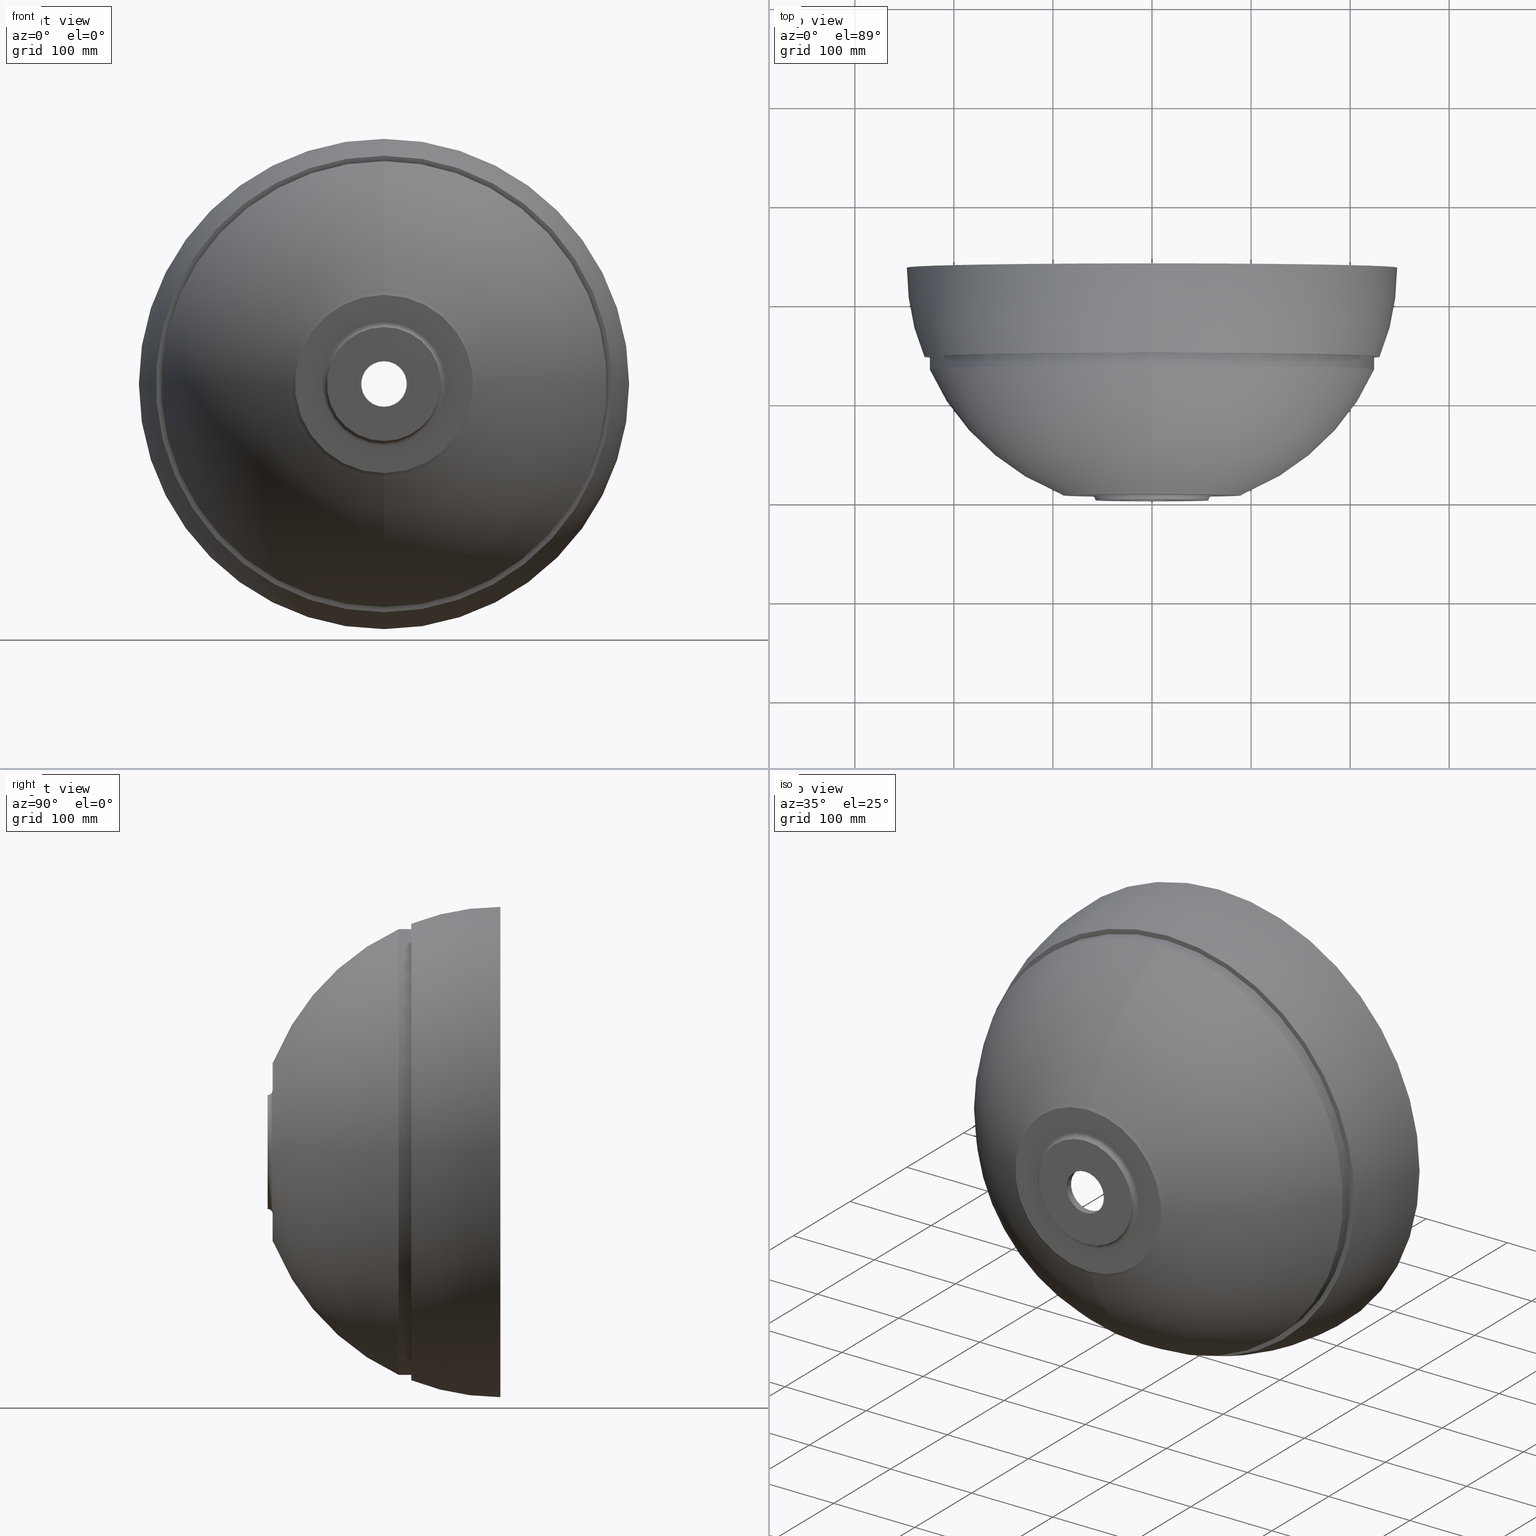
[diagram: canonical four-view strip — front | top / right | iso, engineering-drawing reading convention]
A machine part, canonical four-view strip (front | top / right | iso — engineering-drawing reading convention). The complete STEP part file that produces these views, byte-faithful:
ISO-10303-21;
HEADER;
FILE_DESCRIPTION (( 'STEP AP214' ),
    '1' );
FILE_NAME ('Z821-2HSO Aglaia gro�.STEP',
    '2018-04-12T14:11:02',
    ( '' ),
    ( '' ),
    'SwSTEP 2.0',
    'SolidWorks 2017',
    '' );
FILE_SCHEMA (( 'AUTOMOTIVE_DESIGN' ));
ENDSEC;

DATA;
#1 = CIRCLE ( 'NONE', #137, 225.0000000000000000 ) ;
#2 = EDGE_LOOP ( 'NONE', ( #27, #566, #191, #262 ) ) ;
#3 = PRODUCT_DEFINITION_SHAPE ( 'NONE', 'NONE',  #361 ) ;
#4 = ORIENTED_EDGE ( 'NONE', *, *, #188, .F. ) ;
#5 = ADVANCED_FACE ( 'NONE', ( #583 ), #533, .T. ) ;
#6 = ORIENTED_EDGE ( 'NONE', *, *, #407, .T. ) ;
#7 = EDGE_LOOP ( 'NONE', ( #494, #161, #201, #490 ) ) ;
#8 = DIRECTION ( 'NONE',  ( -0.0000000000000000000, -1.000000000000000000, -0.0000000000000000000 ) ) ;
#9 = AXIS2_PLACEMENT_3D ( 'NONE', #279, #283, #293 ) ;
#10 = LINE ( 'NONE', #565, #171 ) ;
#11 = AXIS2_PLACEMENT_3D ( 'NONE', #587, #603, #585 ) ;
#12 = UNCERTAINTY_MEASURE_WITH_UNIT (LENGTH_MEASURE( 1.000000000000000100E-005 ), #406, 'distance_accuracy_value', 'NONE');
#13 = ORIENTED_EDGE ( 'NONE', *, *, #498, .T. ) ;
#14 = CIRCLE ( 'NONE', #197, 247.5000000000000000 ) ;
#15 = PRESENTATION_STYLE_ASSIGNMENT (( #45 ) ) ;
#16 = FACE_OUTER_BOUND ( 'NONE', #7, .T. ) ;
#17 = FACE_OUTER_BOUND ( 'NONE', #174, .T. ) ;
#18 =( GEOMETRIC_REPRESENTATION_CONTEXT ( 3 ) GLOBAL_UNCERTAINTY_ASSIGNED_CONTEXT ( ( #272 ) ) GLOBAL_UNIT_ASSIGNED_CONTEXT ( ( #524, #561, #50 ) ) REPRESENTATION_CONTEXT ( 'NONE', 'WORKASPACE' ) );
#19 = EDGE_CURVE ( 'NONE', #55, #76, #97, .T. ) ;
#20 = MECHANICAL_DESIGN_GEOMETRIC_PRESENTATION_REPRESENTATION (  '', ( #64 ), #374 ) ;
#21 = PRODUCT ( 'Z821-2HSO Aglaia gro�', 'Z821-2HSO Aglaia gro�', '', ( #554 ) ) ;
#22 = TOROIDAL_SURFACE ( 'NONE', #392, 16.47435897435897100, 216.0256410256409900 ) ;
#23 = ADVANCED_FACE ( 'NONE', ( #17 ), #295, .F. ) ;
#24 = DIRECTION ( 'NONE',  ( 0.0000000000000000000, 1.000000000000000000, 0.0000000000000000000 ) ) ;
#25 = ORIENTED_EDGE ( 'NONE', *, *, #598, .F. ) ;
#26 = CIRCLE ( 'NONE', #364, 245.5287816431456600 ) ;
#27 = ORIENTED_EDGE ( 'NONE', *, *, #379, .T. ) ;
#28 = DIRECTION ( 'NONE',  ( 0.0000000000000000000, 0.0000000000000000000, -1.000000000000000000 ) ) ;
#29 = CIRCLE ( 'NONE', #9, 23.00000000000000000 ) ;
#30 = CARTESIAN_POINT ( 'NONE',  ( 0.0000000000000000000, 145.0000000000000000, 0.0000000000000000000 ) ) ;
#31 = ADVANCED_FACE ( 'NONE', ( #96 ), #135, .T. ) ;
#32 = VERTEX_POINT ( 'NONE', #479 ) ;
#33 = FACE_OUTER_BOUND ( 'NONE', #544, .T. ) ;
#34 = VECTOR ( 'NONE', #111, 1000.000000000000000 ) ;
#35 = EDGE_CURVE ( 'NONE', #69, #210, #51, .T. ) ;
#36 = EDGE_CURVE ( 'NONE', #578, #263, #190, .T. ) ;
#37 = FILL_AREA_STYLE ('',( #109 ) ) ;
#38 = APPLICATION_PROTOCOL_DEFINITION ( 'draft international standard', 'automotive_design', 1998, #256 ) ;
#39 = EDGE_LOOP ( 'NONE', ( #335, #185, #399, #343 ) ) ;
#40 = CIRCLE ( 'NONE', #43, 57.50000000000000000 ) ;
#41 = VERTEX_POINT ( 'NONE', #474 ) ;
#42 = ORIENTED_EDGE ( 'NONE', *, *, #77, .F. ) ;
#43 = AXIS2_PLACEMENT_3D ( 'NONE', #422, #428, #427 ) ;
#44 = CIRCLE ( 'NONE', #112, 245.5287816431456600 ) ;
#45 = SURFACE_STYLE_USAGE ( .BOTH. , #265 ) ;
#46 = VECTOR ( 'NONE', #330, 1000.000000000000000 ) ;
#47 = EDGE_LOOP ( 'NONE', ( #294, #358, #176, #510 ) ) ;
#48 = LINE ( 'NONE', #507, #378 ) ;
#49 = EDGE_CURVE ( 'NONE', #115, #508, #44, .T. ) ;
#50 =( NAMED_UNIT ( * ) SI_UNIT ( $, .STERADIAN. ) SOLID_ANGLE_UNIT ( ) );
#51 = CIRCLE ( 'NONE', #548, 216.0256410256409900 ) ;
#52 = AXIS2_PLACEMENT_3D ( 'NONE', #576, #236, #250 ) ;
#53 = ORIENTED_EDGE ( 'NONE', *, *, #79, .T. ) ;
#54 = FACE_OUTER_BOUND ( 'NONE', #560, .T. ) ;
#55 = VERTEX_POINT ( 'NONE', #528 ) ;
#56 = AXIS2_PLACEMENT_3D ( 'NONE', #550, #547, #503 ) ;
#57 = CIRCLE ( 'NONE', #340, 225.0000000000000000 ) ;
#58 = DIRECTION ( 'NONE',  ( 0.0000000000000000000, 0.0000000000000000000, 1.000000000000000000 ) ) ;
#59 = FACE_OUTER_BOUND ( 'NONE', #2, .T. ) ;
#60 = ORIENTED_EDGE ( 'NONE', *, *, #308, .F. ) ;
#61 = AXIS2_PLACEMENT_3D ( 'NONE', #336, #286, #337 ) ;
#62 = ORIENTED_EDGE ( 'NONE', *, *, #122, .T. ) ;
#63 = FACE_OUTER_BOUND ( 'NONE', #450, .T. ) ;
#64 = STYLED_ITEM ( 'NONE', ( #228 ), #165 ) ;
#65 = DIRECTION ( 'NONE',  ( 0.0000000000000000000, 0.0000000000000000000, 1.000000000000000000 ) ) ;
#66 = DIRECTION ( 'NONE',  ( 1.000000000000000000, 0.0000000000000000000, -1.224646799147353200E-016 ) ) ;
#67 = EDGE_CURVE ( 'NONE', #263, #578, #146, .T. ) ;
#68 = AXIS2_PLACEMENT_3D ( 'NONE', #116, #104, #366 ) ;
#69 = VERTEX_POINT ( 'NONE', #546 ) ;
#70 = DIRECTION ( 'NONE',  ( -1.000000000000000000, 0.0000000000000000000, 0.0000000000000000000 ) ) ;
#71 = EDGE_LOOP ( 'NONE', ( #326, #300, #280, #315 ) ) ;
#72 = CARTESIAN_POINT ( 'NONE',  ( 0.0000000000000000000, 20.00000000000000000, -37.50000000000000000 ) ) ;
#73 = ORIENTED_EDGE ( 'NONE', *, *, #352, .F. ) ;
#74 = VERTEX_POINT ( 'NONE', #487 ) ;
#75 = FACE_OUTER_BOUND ( 'NONE', #473, .T. ) ;
#76 = VERTEX_POINT ( 'NONE', #443 ) ;
#77 = EDGE_CURVE ( 'NONE', #304, #168, #586, .T. ) ;
#78 = AXIS2_PLACEMENT_3D ( 'NONE', #529, #559, #568 ) ;
#79 = EDGE_CURVE ( 'NONE', #338, #184, #579, .T. ) ;
#80 = AXIS2_PLACEMENT_3D ( 'NONE', #217, #322, #306 ) ;
#81 = CARTESIAN_POINT ( 'NONE',  ( 0.0000000000000000000, 145.0000000000000000, 0.0000000000000000000 ) ) ;
#82 = VERTEX_POINT ( 'NONE', #569 ) ;
#83 = ORIENTED_EDGE ( 'NONE', *, *, #77, .T. ) ;
#84 = EDGE_LOOP ( 'NONE', ( #537, #178, #91, #227 ) ) ;
#85 = EDGE_CURVE ( 'NONE', #74, #508, #517, .T. ) ;
#86 = EDGE_LOOP ( 'NONE', ( #88, #117 ) ) ;
#87 = CIRCLE ( 'NONE', #141, 216.0256410256409900 ) ;
#88 = ORIENTED_EDGE ( 'NONE', *, *, #36, .F. ) ;
#89 = AXIS2_PLACEMENT_3D ( 'NONE', #572, #452, #454 ) ;
#90 = AXIS2_PLACEMENT_3D ( 'NONE', #480, #558, #247 ) ;
#91 = ORIENTED_EDGE ( 'NONE', *, *, #150, .T. ) ;
#92 = ORIENTED_EDGE ( 'NONE', *, *, #486, .T. ) ;
#93 = TOROIDAL_SURFACE ( 'NONE', #213, 1.971218356854346700, 245.5287816431456600 ) ;
#94 = ORIENTED_EDGE ( 'NONE', *, *, #35, .F. ) ;
#95 = CLOSED_SHELL ( 'NONE', ( #129, #333, #289, #302, #591, #278, #202, #242, #329, #204, #203, #167, #344, #567, #23, #234, #375, #31, #199, #99, #5 ) ) ;
#96 = FACE_OUTER_BOUND ( 'NONE', #525, .T. ) ;
#97 = CIRCLE ( 'NONE', #258, 95.54141989114369000 ) ;
#98 = EDGE_CURVE ( 'NONE', #32, #488, #10, .T. ) ;
#99 = ADVANCED_FACE ( 'NONE', ( #292, #54 ), #398, .F. ) ;
#100 = APPLICATION_CONTEXT ( 'automotive_design' ) ;
#101 =( NAMED_UNIT ( * ) PLANE_ANGLE_UNIT ( ) SI_UNIT ( $, .RADIAN. ) );
#102 = ORIENTED_EDGE ( 'NONE', *, *, #461, .F. ) ;
#103 = ORIENTED_EDGE ( 'NONE', *, *, #308, .T. ) ;
#104 = DIRECTION ( 'NONE',  ( -0.0000000000000000000, -1.000000000000000000, -0.0000000000000000000 ) ) ;
#105 = CIRCLE ( 'NONE', #430, 231.3768428607466500 ) ;
#106 = CIRCLE ( 'NONE', #158, 37.50000000000000000 ) ;
#107 = AXIS2_PLACEMENT_3D ( 'NONE', #571, #534, #483 ) ;
#108 = EDGE_CURVE ( 'NONE', #196, #76, #142, .T. ) ;
#109 = FILL_AREA_STYLE_COLOUR ( '', #395 ) ;
#110 = STYLED_ITEM ( 'NONE', ( #15 ), #209 ) ;
#111 = DIRECTION ( 'NONE',  ( -0.0000000000000000000, -1.000000000000000000, -0.0000000000000000000 ) ) ;
#112 = AXIS2_PLACEMENT_3D ( 'NONE', #535, #541, #545 ) ;
#113 = CARTESIAN_POINT ( 'NONE',  ( 0.0000000000000000000, 0.0000000000000000000, 0.0000000000000000000 ) ) ;
#114 = AXIS2_PLACEMENT_3D ( 'NONE', #460, #233, #248 ) ;
#115 = VERTEX_POINT ( 'NONE', #380 ) ;
#116 = CARTESIAN_POINT ( 'NONE',  ( 0.0000000000000000000, 20.00000000000000000, 0.0000000000000000000 ) ) ;
#117 = ORIENTED_EDGE ( 'NONE', *, *, #67, .F. ) ;
#118 = DIRECTION ( 'NONE',  ( 0.0000000000000000000, 0.0000000000000000000, -1.000000000000000000 ) ) ;
#119 = DIRECTION ( 'NONE',  ( -0.0000000000000000000, -1.000000000000000000, -0.0000000000000000000 ) ) ;
#120 = DIRECTION ( 'NONE',  ( 0.0000000000000000000, 0.0000000000000000000, -1.000000000000000000 ) ) ;
#121 = DIRECTION ( 'NONE',  ( -0.0000000000000000000, -1.000000000000000000, -0.0000000000000000000 ) ) ;
#122 = EDGE_CURVE ( 'NONE', #115, #133, #14, .T. ) ;
#123 = AXIS2_PLACEMENT_3D ( 'NONE', #453, #451, #449 ) ;
#124 = CARTESIAN_POINT ( 'NONE',  ( 0.0000000000000000000, 8.000000000000062200, 0.0000000000000000000 ) ) ;
#125 = CIRCLE ( 'NONE', #221, 231.3768428607466500 ) ;
#126 = FACE_OUTER_BOUND ( 'NONE', #39, .T. ) ;
#127 = ORIENTED_EDGE ( 'NONE', *, *, #181, .T. ) ;
#128 = MECHANICAL_DESIGN_GEOMETRIC_PRESENTATION_REPRESENTATION (  '', ( #110 ), #18 ) ;
#129 = ADVANCED_FACE ( 'NONE', ( #63 ), #93, .T. ) ;
#130 = TOROIDAL_SURFACE ( 'NONE', #61, 258.1938586785503800, 26.95717112091865200 ) ;
#131 = FACE_OUTER_BOUND ( 'NONE', #514, .T. ) ;
#132 = ORIENTED_EDGE ( 'NONE', *, *, #287, .F. ) ;
#133 = VERTEX_POINT ( 'NONE', #316 ) ;
#134 = CARTESIAN_POINT ( 'NONE',  ( 0.0000000000000000000, 235.0000000000000000, -16.47435897435897100 ) ) ;
#135 = TOROIDAL_SURFACE ( 'NONE', #89, 1.971218356854346700, 245.5287816431456600 ) ;
#136 = TOROIDAL_SURFACE ( 'NONE', #154, 258.1938586785503800, 26.95717112091865200 ) ;
#137 = AXIS2_PLACEMENT_3D ( 'NONE', #81, #119, #118 ) ;
#138 = ORIENTED_EDGE ( 'NONE', *, *, #170, .F. ) ;
#139 = AXIS2_PLACEMENT_3D ( 'NONE', #539, #538, #540 ) ;
#140 = ORIENTED_EDGE ( 'NONE', *, *, #170, .T. ) ;
#141 = AXIS2_PLACEMENT_3D ( 'NONE', #134, #70, #65 ) ;
#142 = CIRCLE ( 'NONE', #160, 30.00000000000000000 ) ;
#143 = UNCERTAINTY_MEASURE_WITH_UNIT (LENGTH_MEASURE( 1.000000000000000100E-005 ), #387, 'distance_accuracy_value', 'NONE');
#144 = EDGE_LOOP ( 'NONE', ( #542, #6, #193, #516 ) ) ;
#145 = VERTEX_POINT ( 'NONE', #312 ) ;
#146 = CIRCLE ( 'NONE', #78, 62.50000000000000000 ) ;
#147 = AXIS2_PLACEMENT_3D ( 'NONE', #321, #409, #357 ) ;
#148 = FACE_OUTER_BOUND ( 'NONE', #71, .T. ) ;
#149 = CIRCLE ( 'NONE', #249, 247.5000000000000000 ) ;
#150 = EDGE_CURVE ( 'NONE', #145, #55, #388, .T. ) ;
#151 = ORIENTED_EDGE ( 'NONE', *, *, #311, .T. ) ;
#152 = CIRCLE ( 'NONE', #68, 37.50000000000000000 ) ;
#153 = EDGE_CURVE ( 'NONE', #32, #266, #240, .T. ) ;
#154 = AXIS2_PLACEMENT_3D ( 'NONE', #222, #597, #28 ) ;
#155 = DIRECTION ( 'NONE',  ( 0.0000000000000000000, 0.0000000000000000000, -1.000000000000000000 ) ) ;
#156 = TOROIDAL_SURFACE ( 'NONE', #411, 16.47435897435897100, 216.0256410256409900 ) ;
#157 = ORIENTED_EDGE ( 'NONE', *, *, #150, .F. ) ;
#158 = AXIS2_PLACEMENT_3D ( 'NONE', #386, #334, #365 ) ;
#159 = EDGE_LOOP ( 'NONE', ( #218, #383 ) ) ;
#160 = AXIS2_PLACEMENT_3D ( 'NONE', #254, #402, #253 ) ;
#161 = ORIENTED_EDGE ( 'NONE', *, *, #287, .T. ) ;
#162 = FACE_BOUND ( 'NONE', #86, .T. ) ;
#163 = VECTOR ( 'NONE', #446, 1000.000000000000000 ) ;
#164 = LINE ( 'NONE', #553, #34 ) ;
#165 = MANIFOLD_SOLID_BREP ( 'Rotation1', #95 ) ;
#166 = CYLINDRICAL_SURFACE ( 'NONE', #520, 224.9999999999999700 ) ;
#167 = ADVANCED_FACE ( 'NONE', ( #33 ), #555, .F. ) ;
#168 = VERTEX_POINT ( 'NONE', #416 ) ;
#169 = CONICAL_SURFACE ( 'NONE', #445, 23.00000000000000000, 0.8726646259971664300 ) ;
#170 = EDGE_CURVE ( 'NONE', #184, #338, #40, .T. ) ;
#171 = VECTOR ( 'NONE', #557, 1000.000000000000000 ) ;
#172 = LINE ( 'NONE', #332, #46 ) ;
#173 = ORIENTED_EDGE ( 'NONE', *, *, #563, .T. ) ;
#174 = EDGE_LOOP ( 'NONE', ( #132, #138, #173, #601 ) ) ;
#175 = ORIENTED_EDGE ( 'NONE', *, *, #359, .T. ) ;
#176 = ORIENTED_EDGE ( 'NONE', *, *, #215, .T. ) ;
#177 = EDGE_LOOP ( 'NONE', ( #13, #325 ) ) ;
#178 = ORIENTED_EDGE ( 'NONE', *, *, #498, .F. ) ;
#179 = CARTESIAN_POINT ( 'NONE',  ( 2.414046251142180800E-016, 235.0000000000000000, 1.971218356854346700 ) ) ;
#180 = ORIENTED_EDGE ( 'NONE', *, *, #153, .F. ) ;
#181 = EDGE_CURVE ( 'NONE', #266, #32, #584, .T. ) ;
#182 = TOROIDAL_SURFACE ( 'NONE', #114, 1.971218356854346700, 245.5287816431456600 ) ;
#183 = FACE_OUTER_BOUND ( 'NONE', #47, .T. ) ;
#184 = VERTEX_POINT ( 'NONE', #417 ) ;
#185 = ORIENTED_EDGE ( 'NONE', *, *, #423, .T. ) ;
#186 = CIRCLE ( 'NONE', #52, 245.5287816431456600 ) ;
#187 = AXIS2_PLACEMENT_3D ( 'NONE', #413, #389, #319 ) ;
#188 = EDGE_CURVE ( 'NONE', #508, #74, #368, .T. ) ;
#189 = SURFACE_STYLE_FILL_AREA ( #37 ) ;
#190 = CIRCLE ( 'NONE', #309, 62.50000000000000000 ) ;
#191 = ORIENTED_EDGE ( 'NONE', *, *, #19, .F. ) ;
#192 = DIRECTION ( 'NONE',  ( -1.224646799147353200E-016, 0.0000000000000000000, -1.000000000000000000 ) ) ;
#193 = ORIENTED_EDGE ( 'NONE', *, *, #470, .T. ) ;
#194 = EDGE_CURVE ( 'NONE', #291, #168, #431, .T. ) ;
#195 = ORIENTED_EDGE ( 'NONE', *, *, #194, .T. ) ;
#196 = VERTEX_POINT ( 'NONE', #492 ) ;
#197 = AXIS2_PLACEMENT_3D ( 'NONE', #277, #244, #307 ) ;
#198 = AXIS2_PLACEMENT_3D ( 'NONE', #438, #346, #342 ) ;
#199 = ADVANCED_FACE ( 'NONE', ( #594 ), #166, .T. ) ;
#200 = ORIENTED_EDGE ( 'NONE', *, *, #527, .F. ) ;
#201 = ORIENTED_EDGE ( 'NONE', *, *, #67, .T. ) ;
#202 = ADVANCED_FACE ( 'NONE', ( #419 ), #169, .F. ) ;
#203 = ADVANCED_FACE ( 'NONE', ( #482 ), #156, .F. ) ;
#204 = ADVANCED_FACE ( 'NONE', ( #223 ), #130, .T. ) ;
#205 = ORIENTED_EDGE ( 'NONE', *, *, #370, .F. ) ;
#206 = EDGE_CURVE ( 'NONE', #32, #82, #172, .T. ) ;
#207 = AXIS2_PLACEMENT_3D ( 'NONE', #124, #121, #120 ) ;
#208 = CIRCLE ( 'NONE', #481, 26.95717112091866600 ) ;
#209 = ADVANCED_BREP_SHAPE_REPRESENTATION ( 'Z821-2HSO Aglaia gro�', ( #165, #349 ), #347 ) ;
#210 = VERTEX_POINT ( 'NONE', #331 ) ;
#211 = DIRECTION ( 'NONE',  ( -0.0000000000000000000, -1.000000000000000000, -0.0000000000000000000 ) ) ;
#212 = DIRECTION ( 'NONE',  ( 1.000000000000000000, 0.0000000000000000000, 0.0000000000000000000 ) ) ;
#213 = AXIS2_PLACEMENT_3D ( 'NONE', #605, #257, #310 ) ;
#214 = ORIENTED_EDGE ( 'NONE', *, *, #433, .T. ) ;
#215 = EDGE_CURVE ( 'NONE', #327, #82, #29, .T. ) ;
#216 = ORIENTED_EDGE ( 'NONE', *, *, #188, .T. ) ;
#217 = CARTESIAN_POINT ( 'NONE',  ( 0.0000000000000000000, 7.833055347929486000, 0.0000000000000000000 ) ) ;
#218 = ORIENTED_EDGE ( 'NONE', *, *, #252, .F. ) ;
#219 = ORIENTED_EDGE ( 'NONE', *, *, #468, .F. ) ;
#220 = EDGE_LOOP ( 'NONE', ( #94, #200, #214, #532 ) ) ;
#221 = AXIS2_PLACEMENT_3D ( 'NONE', #564, #504, #241 ) ;
#222 = CARTESIAN_POINT ( 'NONE',  ( 0.0000000000000000000, 210.2546880923742100, 0.0000000000000000000 ) ) ;
#223 = FACE_OUTER_BOUND ( 'NONE', #144, .T. ) ;
#224 = DIRECTION ( 'NONE',  ( 0.0000000000000000000, 0.0000000000000000000, -1.000000000000000000 ) ) ;
#225 = CARTESIAN_POINT ( 'NONE',  ( -57.50000000000000000, -4.224221601234304800E-016, 0.0000000000000000000 ) ) ;
#226 = DIRECTION ( 'NONE',  ( -1.000000000000000000, 0.0000000000000000000, 0.0000000000000000000 ) ) ;
#227 = ORIENTED_EDGE ( 'NONE', *, *, #19, .T. ) ;
#228 = PRESENTATION_STYLE_ASSIGNMENT (( #437 ) ) ;
#229 = CARTESIAN_POINT ( 'NONE',  ( 0.0000000000000000000, 213.0000000000000300, 0.0000000000000000000 ) ) ;
#230 = DIRECTION ( 'NONE',  ( 0.0000000000000000000, 0.0000000000000000000, 1.000000000000000000 ) ) ;
#231 = CARTESIAN_POINT ( 'NONE',  ( 0.0000000000000000000, 145.0000000000000300, -230.4102312578199000 ) ) ;
#232 = CARTESIAN_POINT ( 'NONE',  ( 0.0000000000000000000, -19.73605584822120900, 0.0000000000000000000 ) ) ;
#233 = DIRECTION ( 'NONE',  ( -0.0000000000000000000, -1.000000000000000000, -0.0000000000000000000 ) ) ;
#234 = ADVANCED_FACE ( 'NONE', ( #162, #497 ), #273, .F. ) ;
#235 = ORIENTED_EDGE ( 'NONE', *, *, #206, .T. ) ;
#236 = DIRECTION ( 'NONE',  ( 1.000000000000000000, 0.0000000000000000000, -1.224646799147353200E-016 ) ) ;
#237 = CIRCLE ( 'NONE', #207, 95.54141989114369000 ) ;
#238 = CARTESIAN_POINT ( 'NONE',  ( 0.0000000000000000000, 210.2546880923742100, -258.1938586785503800 ) ) ;
#239 = ORIENTED_EDGE ( 'NONE', *, *, #153, .T. ) ;
#240 = CIRCLE ( 'NONE', #80, 23.00000000000000000 ) ;
#241 = DIRECTION ( 'NONE',  ( 0.0000000000000000000, 0.0000000000000000000, -1.000000000000000000 ) ) ;
#242 = ADVANCED_FACE ( 'NONE', ( #148 ), #22, .F. ) ;
#243 = PRODUCT_DEFINITION_CONTEXT ( 'detailed design', #256, 'design' ) ;
#244 = DIRECTION ( 'NONE',  ( -0.0000000000000000000, -1.000000000000000000, -0.0000000000000000000 ) ) ;
#245 =( NAMED_UNIT ( * ) SI_UNIT ( $, .STERADIAN. ) SOLID_ANGLE_UNIT ( ) );
#246 = TOROIDAL_SURFACE ( 'NONE', #259, 106.9743200474623600, 29.99999999999999600 ) ;
#247 = DIRECTION ( 'NONE',  ( 0.0000000000000000000, 0.0000000000000000000, -1.000000000000000000 ) ) ;
#248 = DIRECTION ( 'NONE',  ( 0.0000000000000000000, 0.0000000000000000000, -1.000000000000000000 ) ) ;
#249 = AXIS2_PLACEMENT_3D ( 'NONE', #350, #356, #403 ) ;
#250 = DIRECTION ( 'NONE',  ( -1.224646799147353200E-016, 0.0000000000000000000, -1.000000000000000000 ) ) ;
#251 = CARTESIAN_POINT ( 'NONE',  ( -62.50000000000000000, 4.999999999999960900, 0.0000000000000000000 ) ) ;
#252 = EDGE_CURVE ( 'NONE', #82, #327, #496, .T. ) ;
#253 = DIRECTION ( 'NONE',  ( -1.224646799147353000E-016, 0.0000000000000000000, -1.000000000000000000 ) ) ;
#254 = CARTESIAN_POINT ( 'NONE',  ( 1.310057586370893000E-014, -19.73605584822120900, 106.9743200474623600 ) ) ;
#255 = ORIENTED_EDGE ( 'NONE', *, *, #288, .F. ) ;
#256 = APPLICATION_CONTEXT ( 'automotive_design' ) ;
#257 = DIRECTION ( 'NONE',  ( -0.0000000000000000000, -1.000000000000000000, -0.0000000000000000000 ) ) ;
#258 = AXIS2_PLACEMENT_3D ( 'NONE', #458, #475, #463 ) ;
#259 = AXIS2_PLACEMENT_3D ( 'NONE', #232, #414, #523 ) ;
#260 = DIRECTION ( 'NONE',  ( 0.0000000000000000000, 0.0000000000000000000, 1.000000000000000000 ) ) ;
#261 = PRESENTATION_LAYER_ASSIGNMENT (  '', '', ( #64 ) ) ;
#262 = ORIENTED_EDGE ( 'NONE', *, *, #486, .F. ) ;
#263 = VERTEX_POINT ( 'NONE', #298 ) ;
#264 = ORIENTED_EDGE ( 'NONE', *, *, #311, .F. ) ;
#265 = SURFACE_SIDE_STYLE ('',( #189 ) ) ;
#266 = VERTEX_POINT ( 'NONE', #600 ) ;
#267 = FACE_OUTER_BOUND ( 'NONE', #84, .T. ) ;
#268 = EDGE_LOOP ( 'NONE', ( #549, #599, #195, #42 ) ) ;
#269 = DIRECTION ( 'NONE',  ( 1.000000000000000000, 0.0000000000000000000, -1.224646799147353200E-016 ) ) ;
#270 = DIRECTION ( 'NONE',  ( -0.0000000000000000000, -1.000000000000000000, -0.0000000000000000000 ) ) ;
#271 = DIRECTION ( 'NONE',  ( 0.0000000000000000000, 0.0000000000000000000, 1.000000000000000000 ) ) ;
#272 = UNCERTAINTY_MEASURE_WITH_UNIT (LENGTH_MEASURE( 1.000000000000000100E-005 ), #524, 'distance_accuracy_value', 'NONE');
#273 = PLANE ( 'NONE',  #284 ) ;
#274 = CARTESIAN_POINT ( 'NONE',  ( 0.0000000000000000000, 235.0000000000000000, 0.0000000000000000000 ) ) ;
#275 = AXIS2_PLACEMENT_3D ( 'NONE', #518, #303, #155 ) ;
#276 = EDGE_LOOP ( 'NONE', ( #60, #175, #464, #297 ) ) ;
#277 = CARTESIAN_POINT ( 'NONE',  ( 0.0000000000000000000, 235.0000000000000300, 0.0000000000000000000 ) ) ;
#278 = ADVANCED_FACE ( 'NONE', ( #183 ), #469, .F. ) ;
#279 = CARTESIAN_POINT ( 'NONE',  ( 0.0000000000000000000, 0.0000000000000000000, 0.0000000000000000000 ) ) ;
#280 = ORIENTED_EDGE ( 'NONE', *, *, #370, .T. ) ;
#281 = DIRECTION ( 'NONE',  ( -0.0000000000000000000, -1.000000000000000000, -0.0000000000000000000 ) ) ;
#282 = DIRECTION ( 'NONE',  ( 0.0000000000000000000, -0.0000000000000000000, 1.000000000000000000 ) ) ;
#283 = DIRECTION ( 'NONE',  ( -0.0000000000000000000, -1.000000000000000000, -0.0000000000000000000 ) ) ;
#284 = AXIS2_PLACEMENT_3D ( 'NONE', #251, #296, #282 ) ;
#285 = DIRECTION ( 'NONE',  ( 0.0000000000000000000, 0.0000000000000000000, -1.000000000000000000 ) ) ;
#286 = DIRECTION ( 'NONE',  ( -0.0000000000000000000, -1.000000000000000000, -0.0000000000000000000 ) ) ;
#287 = EDGE_CURVE ( 'NONE', #338, #263, #551, .T. ) ;
#288 = EDGE_CURVE ( 'NONE', #304, #76, #186, .T. ) ;
#289 = ADVANCED_FACE ( 'NONE', ( #59 ), #182, .T. ) ;
#290 = ORIENTED_EDGE ( 'NONE', *, *, #194, .F. ) ;
#291 = VERTEX_POINT ( 'NONE', #426 ) ;
#292 = FACE_BOUND ( 'NONE', #390, .T. ) ;
#293 = DIRECTION ( 'NONE',  ( 0.0000000000000000000, 0.0000000000000000000, -1.000000000000000000 ) ) ;
#294 = ORIENTED_EDGE ( 'NONE', *, *, #181, .F. ) ;
#295 = TOROIDAL_SURFACE ( 'NONE', #385, 62.50000000000000000, 4.999999999999998200 ) ;
#296 = DIRECTION ( 'NONE',  ( 0.0000000000000000000, 1.000000000000000000, 0.0000000000000000000 ) ) ;
#297 = ORIENTED_EDGE ( 'NONE', *, *, #85, .F. ) ;
#298 = CARTESIAN_POINT ( 'NONE',  ( 7.654042494670957800E-015, 4.999999999999948500, 62.50000000000000000 ) ) ;
#299 = DIRECTION ( 'NONE',  ( 0.0000000000000000000, 0.0000000000000000000, -1.000000000000000000 ) ) ;
#300 = ORIENTED_EDGE ( 'NONE', *, *, #35, .T. ) ;
#301 = CARTESIAN_POINT ( 'NONE',  ( 2.816687638038912400E-015, 0.0000000000000000000, 23.00000000000000000 ) ) ;
#302 = ADVANCED_FACE ( 'NONE', ( #75 ), #246, .F. ) ;
#303 = DIRECTION ( 'NONE',  ( -0.0000000000000000000, -1.000000000000000000, -0.0000000000000000000 ) ) ;
#304 = VERTEX_POINT ( 'NONE', #573 ) ;
#305 = FILL_AREA_STYLE ('',( #317 ) ) ;
#306 = DIRECTION ( 'NONE',  ( 0.0000000000000000000, 0.0000000000000000000, -1.000000000000000000 ) ) ;
#307 = DIRECTION ( 'NONE',  ( 0.0000000000000000000, 0.0000000000000000000, -1.000000000000000000 ) ) ;
#308 = EDGE_CURVE ( 'NONE', #133, #74, #26, .T. ) ;
#309 = AXIS2_PLACEMENT_3D ( 'NONE', #495, #526, #536 ) ;
#310 = DIRECTION ( 'NONE',  ( 0.0000000000000000000, 0.0000000000000000000, -1.000000000000000000 ) ) ;
#311 = EDGE_CURVE ( 'NONE', #291, #41, #57, .T. ) ;
#312 = CARTESIAN_POINT ( 'NONE',  ( 0.0000000000000000000, 4.999999999999973400, -90.00000000000000000 ) ) ;
#313 = AXIS2_PLACEMENT_3D ( 'NONE', #575, #580, #531 ) ;
#314 = ORIENTED_EDGE ( 'NONE', *, *, #352, .T. ) ;
#315 = ORIENTED_EDGE ( 'NONE', *, *, #433, .F. ) ;
#316 = CARTESIAN_POINT ( 'NONE',  ( 3.031000827889700600E-014, 235.0000000000000300, 247.5000000000001100 ) ) ;
#317 = FILL_AREA_STYLE_COLOUR ( '', #394 ) ;
#318 = DIRECTION ( 'NONE',  ( 0.0000000000000000000, 0.0000000000000000000, -1.000000000000000000 ) ) ;
#319 = DIRECTION ( 'NONE',  ( 0.0000000000000000000, 0.0000000000000000000, 1.000000000000000000 ) ) ;
#320 = CARTESIAN_POINT ( 'NONE',  ( 0.0000000000000000000, 0.0000000000000000000, 0.0000000000000000000 ) ) ;
#321 = CARTESIAN_POINT ( 'NONE',  ( 0.0000000000000000000, -19.73605584822120900, 0.0000000000000000000 ) ) ;
#322 = DIRECTION ( 'NONE',  ( -0.0000000000000000000, -1.000000000000000000, -0.0000000000000000000 ) ) ;
#323 = AXIS2_PLACEMENT_3D ( 'NONE', #328, #472, #260 ) ;
#324 = ORIENTED_EDGE ( 'NONE', *, *, #98, .F. ) ;
#325 = ORIENTED_EDGE ( 'NONE', *, *, #493, .T. ) ;
#326 = ORIENTED_EDGE ( 'NONE', *, *, #407, .F. ) ;
#327 = VERTEX_POINT ( 'NONE', #301 ) ;
#328 = CARTESIAN_POINT ( 'NONE',  ( 0.0000000000000000000, -19.73605584822120900, -106.9743200474623600 ) ) ;
#329 = ADVANCED_FACE ( 'NONE', ( #126 ), #136, .T. ) ;
#330 = DIRECTION ( 'NONE',  ( -0.0000000000000000000, -1.000000000000000000, -0.0000000000000000000 ) ) ;
#331 = CARTESIAN_POINT ( 'NONE',  ( 1.646395824871296000E-014, 20.00000000000000000, 37.50000000000000000 ) ) ;
#332 = CARTESIAN_POINT ( 'NONE',  ( 0.0000000000000000000, 0.0000000000000000000, -23.00000000000000000 ) ) ;
#333 = ADVANCED_FACE ( 'NONE', ( #131 ), #552, .T. ) ;
#334 = DIRECTION ( 'NONE',  ( -0.0000000000000000000, -1.000000000000000000, -0.0000000000000000000 ) ) ;
#335 = ORIENTED_EDGE ( 'NONE', *, *, #527, .T. ) ;
#336 = CARTESIAN_POINT ( 'NONE',  ( 0.0000000000000000000, 210.2546880923742100, 0.0000000000000000000 ) ) ;
#337 = DIRECTION ( 'NONE',  ( 0.0000000000000000000, 0.0000000000000000000, -1.000000000000000000 ) ) ;
#338 = VERTEX_POINT ( 'NONE', #345 ) ;
#339 = CARTESIAN_POINT ( 'NONE',  ( 0.0000000000000000000, -5.030698080332740600E-014, 0.0000000000000000000 ) ) ;
#340 = AXIS2_PLACEMENT_3D ( 'NONE', #30, #401, #299 ) ;
#341 = FACE_BOUND ( 'NONE', #159, .T. ) ;
#342 = DIRECTION ( 'NONE',  ( 0.0000000000000000000, 0.0000000000000000000, -1.000000000000000000 ) ) ;
#343 = ORIENTED_EDGE ( 'NONE', *, *, #470, .F. ) ;
#344 = ADVANCED_FACE ( 'NONE', ( #582 ), #372, .F. ) ;
#345 = CARTESIAN_POINT ( 'NONE',  ( 7.347880794884118400E-015, -8.448443202468609500E-016, 57.50000000000000000 ) ) ;
#346 = DIRECTION ( 'NONE',  ( -0.0000000000000000000, -1.000000000000000000, -0.0000000000000000000 ) ) ;
#347 =( GEOMETRIC_REPRESENTATION_CONTEXT ( 3 ) GLOBAL_UNCERTAINTY_ASSIGNED_CONTEXT ( ( #143 ) ) GLOBAL_UNIT_ASSIGNED_CONTEXT ( ( #387, #101, #245 ) ) REPRESENTATION_CONTEXT ( 'NONE', 'WORKASPACE' ) );
#348 = DIRECTION ( 'NONE',  ( -1.000000000000000000, 0.0000000000000000000, 0.0000000000000000000 ) ) ;
#349 = AXIS2_PLACEMENT_3D ( 'NONE', #113, #271, #212 ) ;
#350 = CARTESIAN_POINT ( 'NONE',  ( 0.0000000000000000000, 235.0000000000000300, 0.0000000000000000000 ) ) ;
#351 = SHAPE_DEFINITION_REPRESENTATION ( #3, #209 ) ;
#352 = EDGE_CURVE ( 'NONE', #266, #210, #439, .T. ) ;
#353 = VECTOR ( 'NONE', #377, 1000.000000000000000 ) ;
#354 = AXIS2_PLACEMENT_3D ( 'NONE', #225, #24, #543 ) ;
#355 = CARTESIAN_POINT ( 'NONE',  ( 7.654042494670957800E-015, -5.030698080332740600E-014, 62.50000000000000000 ) ) ;
#356 = DIRECTION ( 'NONE',  ( -0.0000000000000000000, -1.000000000000000000, -0.0000000000000000000 ) ) ;
#357 = DIRECTION ( 'NONE',  ( 0.0000000000000000000, 0.0000000000000000000, -1.000000000000000000 ) ) ;
#358 = ORIENTED_EDGE ( 'NONE', *, *, #598, .T. ) ;
#359 = EDGE_CURVE ( 'NONE', #133, #115, #149, .T. ) ;
#360 = TOROIDAL_SURFACE ( 'NONE', #90, 62.50000000000000000, 4.999999999999998200 ) ;
#361 = PRODUCT_DEFINITION ( 'UNKNOWN', '', #367, #243 ) ;
#362 = DIRECTION ( 'NONE',  ( -0.0000000000000000000, -1.000000000000000000, -0.0000000000000000000 ) ) ;
#363 = FACE_OUTER_BOUND ( 'NONE', #467, .T. ) ;
#364 = AXIS2_PLACEMENT_3D ( 'NONE', #179, #382, #192 ) ;
#365 = DIRECTION ( 'NONE',  ( 0.0000000000000000000, 0.0000000000000000000, -1.000000000000000000 ) ) ;
#366 = DIRECTION ( 'NONE',  ( 0.0000000000000000000, 0.0000000000000000000, -1.000000000000000000 ) ) ;
#367 = PRODUCT_DEFINITION_FORMATION_WITH_SPECIFIED_SOURCE ( 'ANY', '', #21, .NOT_KNOWN. ) ;
#368 = CIRCLE ( 'NONE', #123, 230.4102312578199000 ) ;
#369 = PLANE ( 'NONE',  #354 ) ;
#370 = EDGE_CURVE ( 'NONE', #210, #488, #106, .T. ) ;
#371 = AXIS2_PLACEMENT_3D ( 'NONE', #444, #441, #440 ) ;
#372 = CYLINDRICAL_SURFACE ( 'NONE', #465, 23.00000000000000000 ) ;
#373 = DIRECTION ( 'NONE',  ( 0.0000000000000000000, 0.0000000000000000000, -1.000000000000000000 ) ) ;
#374 =( GEOMETRIC_REPRESENTATION_CONTEXT ( 3 ) GLOBAL_UNCERTAINTY_ASSIGNED_CONTEXT ( ( #12 ) ) GLOBAL_UNIT_ASSIGNED_CONTEXT ( ( #406, #412, #410 ) ) REPRESENTATION_CONTEXT ( 'NONE', 'WORKASPACE' ) );
#375 = ADVANCED_FACE ( 'NONE', ( #267 ), #376, .F. ) ;
#376 = TOROIDAL_SURFACE ( 'NONE', #147, 106.9743200474623600, 29.99999999999999600 ) ;
#377 = DIRECTION ( 'NONE',  ( 0.0000000000000000000, 0.6427876096865380300, 0.7660444431189791200 ) ) ;
#378 = VECTOR ( 'NONE', #562, 1000.000000000000000 ) ;
#379 = EDGE_CURVE ( 'NONE', #168, #304, #604, .T. ) ;
#380 = CARTESIAN_POINT ( 'NONE',  ( 0.0000000000000000000, 235.0000000000000300, -247.5000000000001100 ) ) ;
#381 = PRODUCT_RELATED_PRODUCT_CATEGORY ( 'part', '', ( #21 ) ) ;
#382 = DIRECTION ( 'NONE',  ( 1.000000000000000000, 0.0000000000000000000, -1.224646799147353200E-016 ) ) ;
#383 = ORIENTED_EDGE ( 'NONE', *, *, #215, .F. ) ;
#384 = ORIENTED_EDGE ( 'NONE', *, *, #252, .T. ) ;
#385 = AXIS2_PLACEMENT_3D ( 'NONE', #339, #457, #455 ) ;
#386 = CARTESIAN_POINT ( 'NONE',  ( 0.0000000000000000000, 20.00000000000000000, 0.0000000000000000000 ) ) ;
#387 =( LENGTH_UNIT ( ) NAMED_UNIT ( * ) SI_UNIT ( .MILLI., .METRE. ) );
#388 = CIRCLE ( 'NONE', #323, 30.00000000000000000 ) ;
#389 = DIRECTION ( 'NONE',  ( 0.0000000000000000000, 1.000000000000000000, 0.0000000000000000000 ) ) ;
#390 = EDGE_LOOP ( 'NONE', ( #264, #219 ) ) ;
#391 = AXIS2_PLACEMENT_3D ( 'NONE', #522, #396, #373 ) ;
#392 = AXIS2_PLACEMENT_3D ( 'NONE', #274, #281, #447 ) ;
#393 = CARTESIAN_POINT ( 'NONE',  ( 0.0000000000000000000, 7.833055347929486000, 23.00000000000000000 ) ) ;
#394 = COLOUR_RGB ( '',1.000000000000000000, 1.000000000000000000, 1.000000000000000000 ) ;
#395 = COLOUR_RGB ( '',1.000000000000000000, 1.000000000000000000, 1.000000000000000000 ) ;
#396 = DIRECTION ( 'NONE',  ( -0.0000000000000000000, -1.000000000000000000, -0.0000000000000000000 ) ) ;
#397 = CARTESIAN_POINT ( 'NONE',  ( 0.0000000000000000000, -5.030698080332740600E-014, -62.50000000000000000 ) ) ;
#398 = PLANE ( 'NONE',  #107 ) ;
#399 = ORIENTED_EDGE ( 'NONE', *, *, #122, .F. ) ;
#400 = ORIENTED_EDGE ( 'NONE', *, *, #461, .T. ) ;
#401 = DIRECTION ( 'NONE',  ( -0.0000000000000000000, -1.000000000000000000, -0.0000000000000000000 ) ) ;
#402 = DIRECTION ( 'NONE',  ( 1.000000000000000000, 0.0000000000000000000, -1.224646799147353200E-016 ) ) ;
#403 = DIRECTION ( 'NONE',  ( 0.0000000000000000000, 0.0000000000000000000, -1.000000000000000000 ) ) ;
#404 = CARTESIAN_POINT ( 'NONE',  ( 0.0000000000000000000, 213.0000000000000300, -231.3768428607466500 ) ) ;
#405 = EDGE_LOOP ( 'NONE', ( #127, #434, #205, #73 ) ) ;
#406 =( LENGTH_UNIT ( ) NAMED_UNIT ( * ) SI_UNIT ( .MILLI., .METRE. ) );
#407 = EDGE_CURVE ( 'NONE', #69, #596, #125, .T. ) ;
#408 = AXIS2_PLACEMENT_3D ( 'NONE', #593, #592, #588 ) ;
#409 = DIRECTION ( 'NONE',  ( -0.0000000000000000000, -1.000000000000000000, -0.0000000000000000000 ) ) ;
#410 =( NAMED_UNIT ( * ) SI_UNIT ( $, .STERADIAN. ) SOLID_ANGLE_UNIT ( ) );
#411 = AXIS2_PLACEMENT_3D ( 'NONE', #477, #476, #285 ) ;
#412 =( NAMED_UNIT ( * ) PLANE_ANGLE_UNIT ( ) SI_UNIT ( $, .RADIAN. ) );
#413 = CARTESIAN_POINT ( 'NONE',  ( 0.0000000000000000000, 7.833055347929486000, 0.0000000000000000000 ) ) ;
#414 = DIRECTION ( 'NONE',  ( -0.0000000000000000000, -1.000000000000000000, -0.0000000000000000000 ) ) ;
#415 = CARTESIAN_POINT ( 'NONE',  ( 3.161962825901907600E-014, 210.2546880923742100, 258.1938586785503800 ) ) ;
#416 = CARTESIAN_POINT ( 'NONE',  ( 0.0000000000000000000, 132.3231030175650500, -224.9999999999999700 ) ) ;
#417 = CARTESIAN_POINT ( 'NONE',  ( 0.0000000000000000000, -8.448443202468609500E-016, -57.50000000000000000 ) ) ;
#418 = DIRECTION ( 'NONE',  ( -1.224646799147353200E-016, 0.0000000000000000000, -1.000000000000000000 ) ) ;
#419 = FACE_OUTER_BOUND ( 'NONE', #405, .T. ) ;
#420 = AXIS2_PLACEMENT_3D ( 'NONE', #521, #362, #515 ) ;
#421 = CIRCLE ( 'NONE', #420, 90.00000000000000000 ) ;
#422 = CARTESIAN_POINT ( 'NONE',  ( 0.0000000000000000000, -8.448443202468609500E-016, 0.0000000000000000000 ) ) ;
#423 = EDGE_CURVE ( 'NONE', #69, #133, #429, .T. ) ;
#424 = EDGE_CURVE ( 'NONE', #41, #304, #48, .T. ) ;
#425 = CARTESIAN_POINT ( 'NONE',  ( 0.0000000000000000000, 0.0000000000000000000, -224.9999999999999700 ) ) ;
#426 = CARTESIAN_POINT ( 'NONE',  ( 0.0000000000000000000, 145.0000000000000000, -225.0000000000000000 ) ) ;
#427 = DIRECTION ( 'NONE',  ( 0.0000000000000000000, 0.0000000000000000000, -1.000000000000000000 ) ) ;
#428 = DIRECTION ( 'NONE',  ( -0.0000000000000000000, -1.000000000000000000, -0.0000000000000000000 ) ) ;
#429 = CIRCLE ( 'NONE', #501, 26.95717112091866600 ) ;
#430 = AXIS2_PLACEMENT_3D ( 'NONE', #229, #211, #224 ) ;
#431 = LINE ( 'NONE', #425, #163 ) ;
#432 = EDGE_LOOP ( 'NONE', ( #25, #180, #235, #384 ) ) ;
#433 = EDGE_CURVE ( 'NONE', #596, #488, #87, .T. ) ;
#434 = ORIENTED_EDGE ( 'NONE', *, *, #98, .T. ) ;
#435 = DIRECTION ( 'NONE',  ( 0.0000000000000000000, 0.0000000000000000000, -1.000000000000000000 ) ) ;
#436 = AXIS2_PLACEMENT_3D ( 'NONE', #397, #226, #58 ) ;
#437 = SURFACE_STYLE_USAGE ( .BOTH. , #471 ) ;
#438 = CARTESIAN_POINT ( 'NONE',  ( 0.0000000000000000000, 235.0000000000000000, 0.0000000000000000000 ) ) ;
#439 = LINE ( 'NONE', #393, #353 ) ;
#440 = DIRECTION ( 'NONE',  ( 0.0000000000000000000, 0.0000000000000000000, -1.000000000000000000 ) ) ;
#441 = DIRECTION ( 'NONE',  ( -0.0000000000000000000, -1.000000000000000000, -0.0000000000000000000 ) ) ;
#442 = AXIS2_PLACEMENT_3D ( 'NONE', #355, #269, #570 ) ;
#443 = CARTESIAN_POINT ( 'NONE',  ( 1.170044940556824100E-014, 8.000000000000062200, 95.54141989114370400 ) ) ;
#444 = CARTESIAN_POINT ( 'NONE',  ( 0.0000000000000000000, 7.833055347929486000, 0.0000000000000000000 ) ) ;
#445 = AXIS2_PLACEMENT_3D ( 'NONE', #485, #519, #513 ) ;
#446 = DIRECTION ( 'NONE',  ( -0.0000000000000000000, -1.000000000000000000, -0.0000000000000000000 ) ) ;
#447 = DIRECTION ( 'NONE',  ( 0.0000000000000000000, 0.0000000000000000000, -1.000000000000000000 ) ) ;
#448 = APPLICATION_PROTOCOL_DEFINITION ( 'draft international standard', 'automotive_design', 1998, #100 ) ;
#449 = DIRECTION ( 'NONE',  ( 0.0000000000000000000, 0.0000000000000000000, -1.000000000000000000 ) ) ;
#450 = EDGE_LOOP ( 'NONE', ( #62, #103, #4, #491 ) ) ;
#451 = DIRECTION ( 'NONE',  ( -0.0000000000000000000, -1.000000000000000000, -0.0000000000000000000 ) ) ;
#452 = DIRECTION ( 'NONE',  ( -0.0000000000000000000, -1.000000000000000000, -0.0000000000000000000 ) ) ;
#453 = CARTESIAN_POINT ( 'NONE',  ( 0.0000000000000000000, 145.0000000000000300, 0.0000000000000000000 ) ) ;
#454 = DIRECTION ( 'NONE',  ( 0.0000000000000000000, 0.0000000000000000000, -1.000000000000000000 ) ) ;
#455 = DIRECTION ( 'NONE',  ( 0.0000000000000000000, 0.0000000000000000000, -1.000000000000000000 ) ) ;
#456 = DIRECTION ( 'NONE',  ( -0.0000000000000000000, -1.000000000000000000, -0.0000000000000000000 ) ) ;
#457 = DIRECTION ( 'NONE',  ( -0.0000000000000000000, -1.000000000000000000, -0.0000000000000000000 ) ) ;
#458 = CARTESIAN_POINT ( 'NONE',  ( 0.0000000000000000000, 8.000000000000062200, 0.0000000000000000000 ) ) ;
#459 = CARTESIAN_POINT ( 'NONE',  ( 0.0000000000000000000, 0.0000000000000000000, 0.0000000000000000000 ) ) ;
#460 = CARTESIAN_POINT ( 'NONE',  ( 0.0000000000000000000, 235.0000000000000000, 0.0000000000000000000 ) ) ;
#461 = EDGE_CURVE ( 'NONE', #76, #55, #237, .T. ) ;
#462 = EDGE_CURVE ( 'NONE', #488, #210, #152, .T. ) ;
#463 = DIRECTION ( 'NONE',  ( 0.0000000000000000000, 0.0000000000000000000, -1.000000000000000000 ) ) ;
#464 = ORIENTED_EDGE ( 'NONE', *, *, #49, .T. ) ;
#465 = AXIS2_PLACEMENT_3D ( 'NONE', #320, #270, #318 ) ;
#466 = DIRECTION ( 'NONE',  ( -1.224646799147352200E-016, 0.0000000000000000000, -1.000000000000000000 ) ) ;
#467 = EDGE_LOOP ( 'NONE', ( #140, #53 ) ) ;
#468 = EDGE_CURVE ( 'NONE', #41, #291, #1, .T. ) ;
#469 = CYLINDRICAL_SURFACE ( 'NONE', #11, 23.00000000000000000 ) ;
#470 = EDGE_CURVE ( 'NONE', #596, #115, #208, .T. ) ;
#471 = SURFACE_SIDE_STYLE ('',( #602 ) ) ;
#472 = DIRECTION ( 'NONE',  ( -1.000000000000000000, 0.0000000000000000000, 0.0000000000000000000 ) ) ;
#473 = EDGE_LOOP ( 'NONE', ( #500, #556, #400, #157 ) ) ;
#474 = CARTESIAN_POINT ( 'NONE',  ( 2.755455298081544900E-014, 145.0000000000000000, 225.0000000000000300 ) ) ;
#475 = DIRECTION ( 'NONE',  ( -0.0000000000000000000, -1.000000000000000000, -0.0000000000000000000 ) ) ;
#476 = DIRECTION ( 'NONE',  ( -0.0000000000000000000, -1.000000000000000000, -0.0000000000000000000 ) ) ;
#477 = CARTESIAN_POINT ( 'NONE',  ( 0.0000000000000000000, 235.0000000000000000, 0.0000000000000000000 ) ) ;
#478 = CARTESIAN_POINT ( 'NONE',  ( 0.0000000000000000000, 4.999999999999948500, -62.50000000000000000 ) ) ;
#479 = CARTESIAN_POINT ( 'NONE',  ( 3.704556567420743000E-015, 7.833055347929486000, -23.00000000000000000 ) ) ;
#480 = CARTESIAN_POINT ( 'NONE',  ( 0.0000000000000000000, -5.030698080332740600E-014, 0.0000000000000000000 ) ) ;
#481 = AXIS2_PLACEMENT_3D ( 'NONE', #238, #348, #230 ) ;
#482 = FACE_OUTER_BOUND ( 'NONE', #220, .T. ) ;
#483 = DIRECTION ( 'NONE',  ( 0.0000000000000000000, -0.0000000000000000000, 1.000000000000000000 ) ) ;
#484 = AXIS2_PLACEMENT_3D ( 'NONE', #574, #8, #590 ) ;
#485 = CARTESIAN_POINT ( 'NONE',  ( 0.0000000000000000000, 7.833055347929486000, 0.0000000000000000000 ) ) ;
#486 = EDGE_CURVE ( 'NONE', #168, #55, #505, .T. ) ;
#487 = CARTESIAN_POINT ( 'NONE',  ( 2.926356174948302200E-014, 145.0000000000000300, 230.4102312578199000 ) ) ;
#488 = VERTEX_POINT ( 'NONE', #72 ) ;
#489 = ORIENTED_EDGE ( 'NONE', *, *, #85, .T. ) ;
#490 = ORIENTED_EDGE ( 'NONE', *, *, #563, .F. ) ;
#491 = ORIENTED_EDGE ( 'NONE', *, *, #49, .F. ) ;
#492 = CARTESIAN_POINT ( 'NONE',  ( 1.136113529894720900E-014, 4.999999999999973400, 90.00000000000000000 ) ) ;
#493 = EDGE_CURVE ( 'NONE', #196, #145, #581, .T. ) ;
#494 = ORIENTED_EDGE ( 'NONE', *, *, #79, .F. ) ;
#495 = CARTESIAN_POINT ( 'NONE',  ( 0.0000000000000000000, 4.999999999999948500, 0.0000000000000000000 ) ) ;
#496 = CIRCLE ( 'NONE', #408, 23.00000000000000000 ) ;
#497 = FACE_OUTER_BOUND ( 'NONE', #177, .T. ) ;
#498 = EDGE_CURVE ( 'NONE', #145, #196, #421, .T. ) ;
#499 = DIRECTION ( 'NONE',  ( 0.0000000000000000000, 0.0000000000000000000, -1.000000000000000000 ) ) ;
#500 = ORIENTED_EDGE ( 'NONE', *, *, #493, .F. ) ;
#501 = AXIS2_PLACEMENT_3D ( 'NONE', #415, #66, #466 ) ;
#502 = ORIENTED_EDGE ( 'NONE', *, *, #462, .F. ) ;
#503 = DIRECTION ( 'NONE',  ( 0.0000000000000000000, 0.0000000000000000000, 1.000000000000000000 ) ) ;
#504 = DIRECTION ( 'NONE',  ( -0.0000000000000000000, -1.000000000000000000, -0.0000000000000000000 ) ) ;
#505 = CIRCLE ( 'NONE', #56, 245.5287816431456600 ) ;
#506 = AXIS2_PLACEMENT_3D ( 'NONE', #589, #606, #499 ) ;
#507 = CARTESIAN_POINT ( 'NONE',  ( 2.755455298081544600E-014, 0.0000000000000000000, 224.9999999999999700 ) ) ;
#508 = VERTEX_POINT ( 'NONE', #231 ) ;
#509 = PRESENTATION_LAYER_ASSIGNMENT (  '', '', ( #110 ) ) ;
#510 = ORIENTED_EDGE ( 'NONE', *, *, #206, .F. ) ;
#511 = CARTESIAN_POINT ( 'NONE',  ( 2.017527098595318400E-015, 235.0000000000000000, 16.47435897435897100 ) ) ;
#512 = DIRECTION ( 'NONE',  ( 1.000000000000000000, 0.0000000000000000000, -1.224646799147353200E-016 ) ) ;
#513 = DIRECTION ( 'NONE',  ( 0.0000000000000000000, 0.0000000000000000000, 1.000000000000000000 ) ) ;
#514 = EDGE_LOOP ( 'NONE', ( #151, #530, #577, #290 ) ) ;
#515 = DIRECTION ( 'NONE',  ( 0.0000000000000000000, 0.0000000000000000000, -1.000000000000000000 ) ) ;
#516 = ORIENTED_EDGE ( 'NONE', *, *, #359, .F. ) ;
#517 = CIRCLE ( 'NONE', #506, 230.4102312578199000 ) ;
#518 = CARTESIAN_POINT ( 'NONE',  ( 0.0000000000000000000, 0.0000000000000000000, 0.0000000000000000000 ) ) ;
#519 = DIRECTION ( 'NONE',  ( 0.0000000000000000000, 1.000000000000000000, 0.0000000000000000000 ) ) ;
#520 = AXIS2_PLACEMENT_3D ( 'NONE', #459, #456, #435 ) ;
#521 = CARTESIAN_POINT ( 'NONE',  ( 0.0000000000000000000, 4.999999999999973400, 0.0000000000000000000 ) ) ;
#522 = CARTESIAN_POINT ( 'NONE',  ( 0.0000000000000000000, 4.999999999999973400, 0.0000000000000000000 ) ) ;
#523 = DIRECTION ( 'NONE',  ( 0.0000000000000000000, 0.0000000000000000000, -1.000000000000000000 ) ) ;
#524 =( LENGTH_UNIT ( ) NAMED_UNIT ( * ) SI_UNIT ( .MILLI., .METRE. ) );
#525 = EDGE_LOOP ( 'NONE', ( #255, #83, #92, #102 ) ) ;
#526 = DIRECTION ( 'NONE',  ( -0.0000000000000000000, -1.000000000000000000, -0.0000000000000000000 ) ) ;
#527 = EDGE_CURVE ( 'NONE', #596, #69, #105, .T. ) ;
#528 = CARTESIAN_POINT ( 'NONE',  ( 0.0000000000000000000, 8.000000000000062200, -95.54141989114370400 ) ) ;
#529 = CARTESIAN_POINT ( 'NONE',  ( 0.0000000000000000000, 4.999999999999948500, 0.0000000000000000000 ) ) ;
#530 = ORIENTED_EDGE ( 'NONE', *, *, #424, .T. ) ;
#531 = DIRECTION ( 'NONE',  ( 0.0000000000000000000, 0.0000000000000000000, -1.000000000000000000 ) ) ;
#532 = ORIENTED_EDGE ( 'NONE', *, *, #462, .T. ) ;
#533 = TOROIDAL_SURFACE ( 'NONE', #198, 1.971218356854346700, 245.5287816431456600 ) ;
#534 = DIRECTION ( 'NONE',  ( 0.0000000000000000000, 1.000000000000000000, 0.0000000000000000000 ) ) ;
#535 = CARTESIAN_POINT ( 'NONE',  ( 0.0000000000000000000, 235.0000000000000000, -1.971218356854346700 ) ) ;
#536 = DIRECTION ( 'NONE',  ( 0.0000000000000000000, 0.0000000000000000000, -1.000000000000000000 ) ) ;
#537 = ORIENTED_EDGE ( 'NONE', *, *, #108, .F. ) ;
#538 = DIRECTION ( 'NONE',  ( -0.0000000000000000000, -1.000000000000000000, -0.0000000000000000000 ) ) ;
#539 = CARTESIAN_POINT ( 'NONE',  ( 0.0000000000000000000, 132.3231030175650200, 0.0000000000000000000 ) ) ;
#540 = DIRECTION ( 'NONE',  ( 0.0000000000000000000, 0.0000000000000000000, -1.000000000000000000 ) ) ;
#541 = DIRECTION ( 'NONE',  ( -1.000000000000000000, 0.0000000000000000000, 0.0000000000000000000 ) ) ;
#542 = ORIENTED_EDGE ( 'NONE', *, *, #423, .F. ) ;
#543 = DIRECTION ( 'NONE',  ( 0.0000000000000000000, -0.0000000000000000000, 1.000000000000000000 ) ) ;
#544 = EDGE_LOOP ( 'NONE', ( #324, #239, #314, #502 ) ) ;
#545 = DIRECTION ( 'NONE',  ( 0.0000000000000000000, 0.0000000000000000000, 1.000000000000000000 ) ) ;
#546 = CARTESIAN_POINT ( 'NONE',  ( 2.932274963976017900E-014, 213.0000000000000300, 231.3768428607466800 ) ) ;
#547 = DIRECTION ( 'NONE',  ( -1.000000000000000000, 0.0000000000000000000, 0.0000000000000000000 ) ) ;
#548 = AXIS2_PLACEMENT_3D ( 'NONE', #511, #512, #418 ) ;
#549 = ORIENTED_EDGE ( 'NONE', *, *, #424, .F. ) ;
#550 = CARTESIAN_POINT ( 'NONE',  ( 0.0000000000000000000, 235.0000000000000000, -1.971218356854346700 ) ) ;
#551 = CIRCLE ( 'NONE', #442, 4.999999999999997300 ) ;
#552 = CYLINDRICAL_SURFACE ( 'NONE', #275, 224.9999999999999700 ) ;
#553 = CARTESIAN_POINT ( 'NONE',  ( 2.816687638038912400E-015, 0.0000000000000000000, 23.00000000000000000 ) ) ;
#554 = PRODUCT_CONTEXT ( 'NONE', #100, 'mechanical' ) ;
#555 = CONICAL_SURFACE ( 'NONE', #187, 23.00000000000000000, 0.8726646259971664300 ) ;
#556 = ORIENTED_EDGE ( 'NONE', *, *, #108, .T. ) ;
#557 = DIRECTION ( 'NONE',  ( 9.381338752702744300E-017, 0.6427876096865380300, -0.7660444431189791200 ) ) ;
#558 = DIRECTION ( 'NONE',  ( -0.0000000000000000000, -1.000000000000000000, -0.0000000000000000000 ) ) ;
#559 = DIRECTION ( 'NONE',  ( -0.0000000000000000000, -1.000000000000000000, -0.0000000000000000000 ) ) ;
#560 = EDGE_LOOP ( 'NONE', ( #216, #489 ) ) ;
#561 =( NAMED_UNIT ( * ) PLANE_ANGLE_UNIT ( ) SI_UNIT ( $, .RADIAN. ) );
#562 = DIRECTION ( 'NONE',  ( -0.0000000000000000000, -1.000000000000000000, -0.0000000000000000000 ) ) ;
#563 = EDGE_CURVE ( 'NONE', #184, #578, #595, .T. ) ;
#564 = CARTESIAN_POINT ( 'NONE',  ( 0.0000000000000000000, 213.0000000000000300, 0.0000000000000000000 ) ) ;
#565 = CARTESIAN_POINT ( 'NONE',  ( 2.816687638038912400E-015, 7.833055347929486000, -23.00000000000000000 ) ) ;
#566 = ORIENTED_EDGE ( 'NONE', *, *, #288, .T. ) ;
#567 = ADVANCED_FACE ( 'NONE', ( #341, #363 ), #369, .F. ) ;
#568 = DIRECTION ( 'NONE',  ( 0.0000000000000000000, 0.0000000000000000000, -1.000000000000000000 ) ) ;
#569 = CARTESIAN_POINT ( 'NONE',  ( 0.0000000000000000000, 0.0000000000000000000, -23.00000000000000000 ) ) ;
#570 = DIRECTION ( 'NONE',  ( -1.224646799147354200E-016, 0.0000000000000000000, -1.000000000000000000 ) ) ;
#571 = CARTESIAN_POINT ( 'NONE',  ( -230.4102312578198700, 145.0000000000000300, 0.0000000000000000000 ) ) ;
#572 = CARTESIAN_POINT ( 'NONE',  ( 0.0000000000000000000, 235.0000000000000000, 0.0000000000000000000 ) ) ;
#573 = CARTESIAN_POINT ( 'NONE',  ( 2.755455298081544300E-014, 132.3231030175650500, 224.9999999999999700 ) ) ;
#574 = CARTESIAN_POINT ( 'NONE',  ( 0.0000000000000000000, -8.448443202468609500E-016, 0.0000000000000000000 ) ) ;
#575 = CARTESIAN_POINT ( 'NONE',  ( 0.0000000000000000000, 132.3231030175650200, 0.0000000000000000000 ) ) ;
#576 = CARTESIAN_POINT ( 'NONE',  ( 2.414046251142180800E-016, 235.0000000000000000, 1.971218356854346700 ) ) ;
#577 = ORIENTED_EDGE ( 'NONE', *, *, #379, .F. ) ;
#578 = VERTEX_POINT ( 'NONE', #478 ) ;
#579 = CIRCLE ( 'NONE', #484, 57.50000000000000000 ) ;
#580 = DIRECTION ( 'NONE',  ( -0.0000000000000000000, -1.000000000000000000, -0.0000000000000000000 ) ) ;
#581 = CIRCLE ( 'NONE', #391, 90.00000000000000000 ) ;
#582 = FACE_OUTER_BOUND ( 'NONE', #432, .T. ) ;
#583 = FACE_OUTER_BOUND ( 'NONE', #276, .T. ) ;
#584 = CIRCLE ( 'NONE', #371, 23.00000000000000000 ) ;
#585 = DIRECTION ( 'NONE',  ( 0.0000000000000000000, 0.0000000000000000000, -1.000000000000000000 ) ) ;
#586 = CIRCLE ( 'NONE', #313, 224.9999999999999700 ) ;
#587 = CARTESIAN_POINT ( 'NONE',  ( 0.0000000000000000000, 0.0000000000000000000, 0.0000000000000000000 ) ) ;
#588 = DIRECTION ( 'NONE',  ( 0.0000000000000000000, 0.0000000000000000000, -1.000000000000000000 ) ) ;
#589 = CARTESIAN_POINT ( 'NONE',  ( 0.0000000000000000000, 145.0000000000000300, 0.0000000000000000000 ) ) ;
#590 = DIRECTION ( 'NONE',  ( 0.0000000000000000000, 0.0000000000000000000, -1.000000000000000000 ) ) ;
#591 = ADVANCED_FACE ( 'NONE', ( #16 ), #360, .F. ) ;
#592 = DIRECTION ( 'NONE',  ( -0.0000000000000000000, -1.000000000000000000, -0.0000000000000000000 ) ) ;
#593 = CARTESIAN_POINT ( 'NONE',  ( 0.0000000000000000000, 0.0000000000000000000, 0.0000000000000000000 ) ) ;
#594 = FACE_OUTER_BOUND ( 'NONE', #268, .T. ) ;
#595 = CIRCLE ( 'NONE', #436, 4.999999999999997300 ) ;
#596 = VERTEX_POINT ( 'NONE', #404 ) ;
#597 = DIRECTION ( 'NONE',  ( -0.0000000000000000000, -1.000000000000000000, -0.0000000000000000000 ) ) ;
#598 = EDGE_CURVE ( 'NONE', #266, #327, #164, .T. ) ;
#599 = ORIENTED_EDGE ( 'NONE', *, *, #468, .T. ) ;
#600 = CARTESIAN_POINT ( 'NONE',  ( 0.0000000000000000000, 7.833055347929486000, 23.00000000000000000 ) ) ;
#601 = ORIENTED_EDGE ( 'NONE', *, *, #36, .T. ) ;
#602 = SURFACE_STYLE_FILL_AREA ( #305 ) ;
#603 = DIRECTION ( 'NONE',  ( -0.0000000000000000000, -1.000000000000000000, -0.0000000000000000000 ) ) ;
#604 = CIRCLE ( 'NONE', #139, 224.9999999999999700 ) ;
#605 = CARTESIAN_POINT ( 'NONE',  ( 0.0000000000000000000, 235.0000000000000000, 0.0000000000000000000 ) ) ;
#606 = DIRECTION ( 'NONE',  ( -0.0000000000000000000, -1.000000000000000000, -0.0000000000000000000 ) ) ;
ENDSEC;
END-ISO-10303-21;
